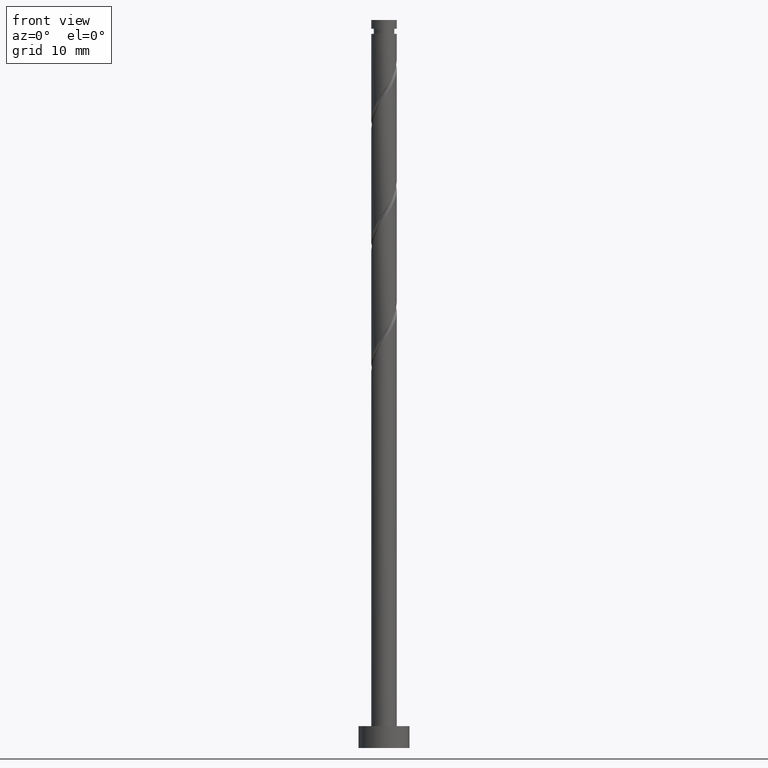
[diagram: clean part render]
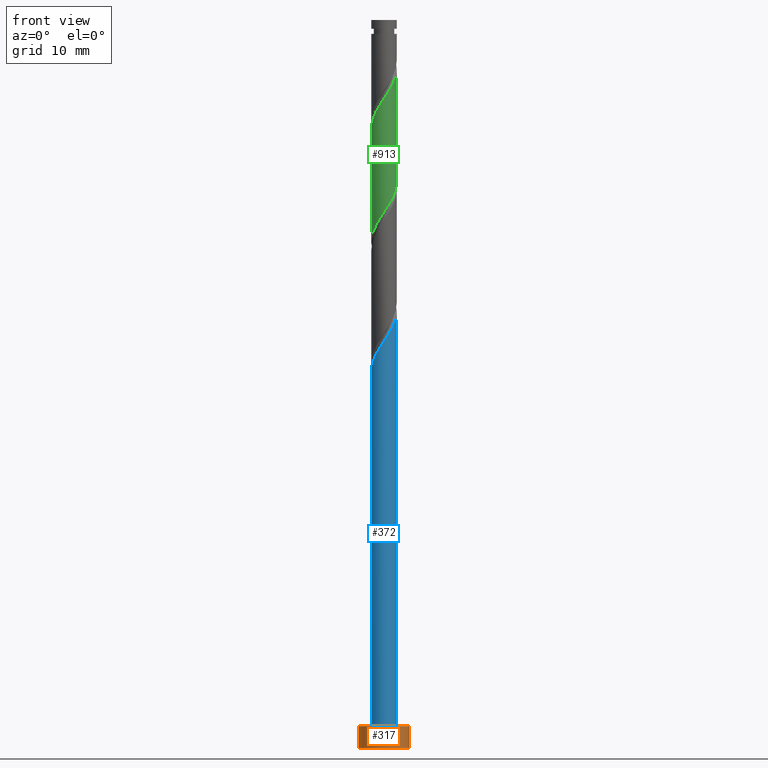
[diagram: same view with three faces highlighted in distinct colors, each labeled with its STEP entity id]
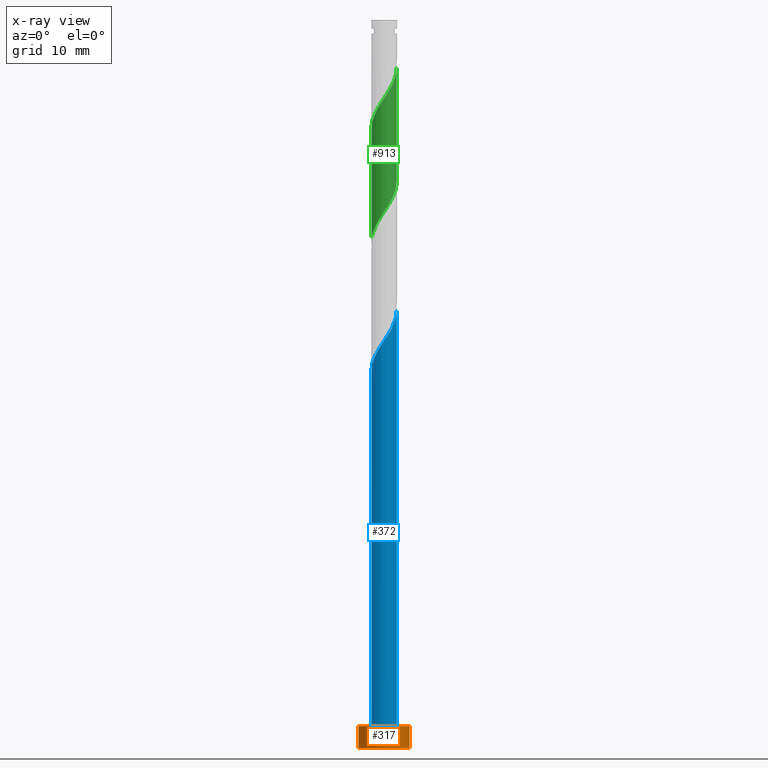
[diagram: x-ray of the same camera — body ghosted, the three highlighted faces saturated]
A machine part, front view with three faces highlighted in distinct colors.
The next image is the same camera in x-ray (body ghosted, the three faces saturated) — at least one of them is partly hidden behind the body in this view.
Their STEP definitions:

[orange] entity #317 — the highlighted cylindrical surface (edge-blend (fillet) strip) has radius 3.5 mm, axis along (-0, -0, -1).
#3 = CARTESIAN_POINT ( 'NONE',  ( 0.000000000000000000, 0.000000000000000000, 0.000000000000000000 ) ) ;
#13 = CARTESIAN_POINT ( 'NONE',  ( 0.000000000000000000, 0.000000000000000000, 3.000000000000000000 ) ) ;
#43 = VERTEX_POINT ( 'NONE', #645 ) ;
#125 = EDGE_CURVE ( 'NONE', #222, #43, #784, .T. ) ;
#158 = DIRECTION ( 'NONE',  ( -1.000000000000000000, 0.000000000000000000, 0.000000000000000000 ) ) ;
#174 = EDGE_CURVE ( 'NONE', #43, #879, #499, .T. ) ;
#214 = CARTESIAN_POINT ( 'NONE',  ( -3.500000000000000000, 0.000000000000000000, 3.000000000000000000 ) ) ;
#222 = VERTEX_POINT ( 'NONE', #326 ) ;
#245 = EDGE_CURVE ( 'NONE', #222, #629, #1126, .T. ) ;
#255 = DIRECTION ( 'NONE',  ( -0.000000000000000000, -0.000000000000000000, -1.000000000000000000 ) ) ;
#284 = AXIS2_PLACEMENT_3D ( 'NONE', #904, #1133, #667 ) ;
#317 = ADVANCED_FACE ( 'NONE', ( #382 ), #488, .T. ) ;
#326 = CARTESIAN_POINT ( 'NONE',  ( -3.500000000000000000, 0.000000000000000000, 3.000000000000000000 ) ) ;
#365 = DIRECTION ( 'NONE',  ( -0.000000000000000000, -0.000000000000000000, -1.000000000000000000 ) ) ;
#382 = FACE_OUTER_BOUND ( 'NONE', #1225, .T. ) ;
#476 = EDGE_CURVE ( 'NONE', #629, #879, #605, .T. ) ;
#488 = CYLINDRICAL_SURFACE ( 'NONE', #870, 3.500000000000000000 ) ;
#499 = CIRCLE ( 'NONE', #774, 3.500000000000000000 ) ;
#500 = ORIENTED_EDGE ( 'NONE', *, *, #174, .T. ) ;
#552 = ORIENTED_EDGE ( 'NONE', *, *, #476, .F. ) ;
#605 = LINE ( 'NONE', #1293, #893 ) ;
#629 = VERTEX_POINT ( 'NONE', #630 ) ;
#630 = CARTESIAN_POINT ( 'NONE',  ( 3.500000000000000000, 4.286263797015736595E-16, 3.000000000000000000 ) ) ;
#645 = CARTESIAN_POINT ( 'NONE',  ( -3.500000000000000000, 0.000000000000000000, 0.000000000000000000 ) ) ;
#667 = DIRECTION ( 'NONE',  ( 1.000000000000000000, 0.000000000000000000, 0.000000000000000000 ) ) ;
#774 = AXIS2_PLACEMENT_3D ( 'NONE', #3, #1024, #1475 ) ;
#784 = LINE ( 'NONE', #214, #1428 ) ;
#870 = AXIS2_PLACEMENT_3D ( 'NONE', #13, #365, #158 ) ;
#879 = VERTEX_POINT ( 'NONE', #895 ) ;
#893 = VECTOR ( 'NONE', #255, 1000.000000000000000 ) ;
#895 = CARTESIAN_POINT ( 'NONE',  ( 3.500000000000000000, 4.286263797015736595E-16, 0.000000000000000000 ) ) ;
#904 = CARTESIAN_POINT ( 'NONE',  ( 0.000000000000000000, 0.000000000000000000, 3.000000000000000000 ) ) ;
#1024 = DIRECTION ( 'NONE',  ( 0.000000000000000000, 0.000000000000000000, 1.000000000000000000 ) ) ;
#1126 = CIRCLE ( 'NONE', #284, 3.500000000000000000 ) ;
#1133 = DIRECTION ( 'NONE',  ( 0.000000000000000000, 0.000000000000000000, 1.000000000000000000 ) ) ;
#1139 = DIRECTION ( 'NONE',  ( -0.000000000000000000, -0.000000000000000000, -1.000000000000000000 ) ) ;
#1225 = EDGE_LOOP ( 'NONE', ( #552, #1431, #1310, #500 ) ) ;
#1293 = CARTESIAN_POINT ( 'NONE',  ( 3.500000000000000000, 4.286263797015736595E-16, 3.000000000000000000 ) ) ;
#1310 = ORIENTED_EDGE ( 'NONE', *, *, #125, .T. ) ;
#1428 = VECTOR ( 'NONE', #1139, 1000.000000000000000 ) ;
#1431 = ORIENTED_EDGE ( 'NONE', *, *, #245, .F. ) ;
#1475 = DIRECTION ( 'NONE',  ( 1.000000000000000000, 0.000000000000000000, 0.000000000000000000 ) ) ;

[blue] entity #372 — the highlighted cylindrical surface (edge-blend (fillet) strip) has radius 1.75 mm, axis along (-0, -0, -1).
#24 = CARTESIAN_POINT ( 'NONE',  ( -0.8356091416033645247, -1.537614178677113808, 54.58784157387103875 ) ) ;
#44 = CARTESIAN_POINT ( 'NONE',  ( 0.9138083691518432694, -1.492465833601578806, 57.36561935164882442 ) ) ;
#46 = CARTESIAN_POINT ( 'NONE',  ( 1.750000000000000000, 2.143131898507867804E-16, 3.000000000000000000 ) ) ;
#48 = FACE_OUTER_BOUND ( 'NONE', #343, .T. ) ;
#61 = CARTESIAN_POINT ( 'NONE',  ( -1.311110765996656102, -1.159089538943247399, 53.66191564794513624 ) ) ;
#178 = EDGE_CURVE ( 'NONE', #1166, #1127, #1300, .T. ) ;
#258 = CARTESIAN_POINT ( 'NONE',  ( -1.750000000000002442, 1.471488204869028877E-15, 51.74217187073413271 ) ) ;
#299 = ORIENTED_EDGE ( 'NONE', *, *, #1308, .F. ) ;
#343 = EDGE_LOOP ( 'NONE', ( #1358, #299, #444, #1207 ) ) ;
#363 = EDGE_CURVE ( 'NONE', #1375, #1166, #718, .T. ) ;
#372 = ADVANCED_FACE ( 'NONE', ( #48 ), #1397, .T. ) ;
#373 = DIRECTION ( 'NONE',  ( -0.000000000000000000, -0.000000000000000000, -1.000000000000000000 ) ) ;
#400 = CARTESIAN_POINT ( 'NONE',  ( 1.750000000000001110, -0.2853451506858047382, 59.64558569170184654 ) ) ;
#444 = ORIENTED_EDGE ( 'NONE', *, *, #363, .T. ) ;
#464 = DIRECTION ( 'NONE',  ( 1.000000000000000000, 0.000000000000000000, 0.000000000000000000 ) ) ;
#471 = CARTESIAN_POINT ( 'NONE',  ( 0.000000000000000000, 0.000000000000000000, 3.000000000000000000 ) ) ;
#481 = DIRECTION ( 'NONE',  ( -1.000000000000000000, 0.000000000000000000, 0.000000000000000000 ) ) ;
#482 = VERTEX_POINT ( 'NONE', #1156 ) ;
#491 = CARTESIAN_POINT ( 'NONE',  ( 1.369152359621468085, -1.089918261220983897, 58.29154527757475535 ) ) ;
#501 = CARTESIAN_POINT ( 'NONE',  ( -1.628473082076669742, -0.6407615944731068769, 52.73598972201919821 ) ) ;
#511 = CARTESIAN_POINT ( 'NONE',  ( -1.515489524769285890, -0.9279053362006949301, 53.19895268498216723 ) ) ;
#528 = AXIS2_PLACEMENT_3D ( 'NONE', #709, #373, #481 ) ;
#601 = CARTESIAN_POINT ( 'NONE',  ( 1.659356368983972541, -0.5559104610567554561, 59.21747120350067206 ) ) ;
#608 = CARTESIAN_POINT ( 'NONE',  ( -1.741456639384055149, -0.3536178527455196563, 52.27302675905625051 ) ) ;
#610 = EDGE_CURVE ( 'NONE', #482, #1127, #1448, .T. ) ;
#618 = CARTESIAN_POINT ( 'NONE',  ( -1.749417510755208127, -0.04514834507553509152, 51.81006379609327439 ) ) ;
#626 = CARTESIAN_POINT ( 'NONE',  ( 1.561334355841584642, -0.8484997595190606479, 58.75450824053774568 ) ) ;
#635 = CARTESIAN_POINT ( 'NONE',  ( -1.750000000000002442, 1.471488204869028877E-15, 51.74217187073413271 ) ) ;
#709 = CARTESIAN_POINT ( 'NONE',  ( 0.000000000000000000, 0.000000000000000000, 100.0000000000000000 ) ) ;
#718 = LINE ( 'NONE', #1063, #975 ) ;
#734 = CARTESIAN_POINT ( 'NONE',  ( 1.176970363401352637, -1.331336762922908701, 57.82858231461180765 ) ) ;
#791 = DIRECTION ( 'NONE',  ( 0.000000000000000000, 0.000000000000000000, 1.000000000000000000 ) ) ;
#832 = CARTESIAN_POINT ( 'NONE',  ( 1.750000000000002442, -1.478957688142475436E-15, 60.07550520406746841 ) ) ;
#892 =( BOUNDED_CURVE ( )  B_SPLINE_CURVE ( 2, ( #635, #963, #618, #608, #501, #511, #61, #1283, #24, #1077, #1069, #1059, #951, #1187, #44, #734, #491, #626, #601, #400, #832 ),
 .UNSPECIFIED., .F., .T. ) 
 B_SPLINE_CURVE_WITH_KNOTS ( ( 3, 2, 2, 2, 2, 2, 2, 2, 2, 2, 3 ),
 ( 0.05452480538552886835, 0.05555555555555558023, 0.06944444444444441977, 0.08333333333333337034, 0.09722222222222220989, 0.1111111111111111605, 0.1250000000000000000, 0.1388888888888888395, 0.1527777777777777901, 0.1666666666666666297, 0.1795248053855288961 ),
 .UNSPECIFIED. ) 
 CURVE ( )  GEOMETRIC_REPRESENTATION_ITEM ( )  RATIONAL_B_SPLINE_CURVE ( ( 0.9071930855141260297, 0.9080659294509738633, 0.9090909090909141677, 0.8952797754656484086, 0.9090909090909141677, 0.8952797754656484086, 0.9090909090909141677, 0.8952797754656484086, 0.9090909090909141677, 0.8952797754656484086, 0.9090909090909141677, 0.8952797754656484086, 0.9090909090909141677, 0.8952797754656484086, 0.9090909090909141677, 0.8952797754656484086, 0.9090909090909141677, 0.8952797754656484086, 0.9090909090909141677, 0.8963047551055886020, 0.9071930855141262517 ) ) 
 REPRESENTATION_ITEM ( '' )  );
#919 = AXIS2_PLACEMENT_3D ( 'NONE', #471, #791, #464 ) ;
#951 = CARTESIAN_POINT ( 'NONE',  ( 0.3482456029873167713, -1.715000000000002078, 56.43969342572289349 ) ) ;
#963 = CARTESIAN_POINT ( 'NONE',  ( -1.750000000000002665, -0.02257793008103167048, 51.77618924466649730 ) ) ;
#972 = CARTESIAN_POINT ( 'NONE',  ( -1.750000000000000000, 0.000000000000000000, 3.000000000000000000 ) ) ;
#975 = VECTOR ( 'NONE', #1301, 1000.000000000000000 ) ;
#980 = DIRECTION ( 'NONE',  ( -0.000000000000000000, -0.000000000000000000, -1.000000000000000000 ) ) ;
#1059 = CARTESIAN_POINT ( 'NONE',  ( 0.04584483107229859328, -1.776405095719755689, 55.97673046275996001 ) ) ;
#1063 = CARTESIAN_POINT ( 'NONE',  ( -1.750000000000000000, 0.000000000000000000, 100.0000000000000000 ) ) ;
#1069 = CARTESIAN_POINT ( 'NONE',  ( -0.2593207224552019352, -1.730679855694090330, 55.51376749979696967 ) ) ;
#1077 = CARTESIAN_POINT ( 'NONE',  ( -0.5644862759827029564, -1.684954615668428302, 55.05080453683402908 ) ) ;
#1107 = VECTOR ( 'NONE', #980, 1000.000000000000000 ) ;
#1127 = VERTEX_POINT ( 'NONE', #46 ) ;
#1156 = CARTESIAN_POINT ( 'NONE',  ( 1.750000000000002442, -1.478957688142475633E-15, 60.07550520406746841 ) ) ;
#1166 = VERTEX_POINT ( 'NONE', #972 ) ;
#1187 = CARTESIAN_POINT ( 'NONE',  ( 0.6506463749023345677, -1.653594904280250688, 56.90265638868588383 ) ) ;
#1207 = ORIENTED_EDGE ( 'NONE', *, *, #178, .T. ) ;
#1283 = CARTESIAN_POINT ( 'NONE',  ( -1.106732007224026537, -1.390273741685801090, 54.12487861090811236 ) ) ;
#1300 = CIRCLE ( 'NONE', #919, 1.750000000000000000 ) ;
#1301 = DIRECTION ( 'NONE',  ( -0.000000000000000000, -0.000000000000000000, -1.000000000000000000 ) ) ;
#1308 = EDGE_CURVE ( 'NONE', #1375, #482, #892, .T. ) ;
#1358 = ORIENTED_EDGE ( 'NONE', *, *, #610, .F. ) ;
#1375 = VERTEX_POINT ( 'NONE', #258 ) ;
#1397 = CYLINDRICAL_SURFACE ( 'NONE', #528, 1.750000000000000000 ) ;
#1448 = LINE ( 'NONE', #1454, #1107 ) ;
#1454 = CARTESIAN_POINT ( 'NONE',  ( 1.750000000000000000, 2.143131898507867804E-16, 100.0000000000000000 ) ) ;

[green] entity #913 — the highlighted cylindrical surface (edge-blend (fillet) strip) has radius 1.75 mm, axis along (-0, -0, -1).
#11 = CARTESIAN_POINT ( 'NONE',  ( -0.2593207224552019352, -1.730679855694090330, 88.84710083313032669 ) ) ;
#15 = CARTESIAN_POINT ( 'NONE',  ( -1.628473082076669742, -0.6407615944731068769, 86.06932305535248418 ) ) ;
#21 = CARTESIAN_POINT ( 'NONE',  ( -1.659356368983970764, -0.5559104610567531246, 70.32858231461179344 ) ) ;
#29 = CARTESIAN_POINT ( 'NONE',  ( -0.3482456029873170489, -1.715000000000000080, 73.10636009238956490 ) ) ;
#38 = CARTESIAN_POINT ( 'NONE',  ( 1.750000000000001998, 7.693567771650252350E-16, 93.40883853740081122 ) ) ;
#84 = EDGE_CURVE ( 'NONE', #1279, #385, #1114, .T. ) ;
#88 = AXIS2_PLACEMENT_3D ( 'NONE', #783, #339, #575 ) ;
#100 = CARTESIAN_POINT ( 'NONE',  ( -1.750000000000001998, -7.730915188017486130E-16, 85.07550520406746841 ) ) ;
#134 = CARTESIAN_POINT ( 'NONE',  ( -0.6506463749023349008, -1.653594904280247579, 72.64339712942663141 ) ) ;
#139 = CARTESIAN_POINT ( 'NONE',  ( 0.9138083691518432694, -1.492465833601578806, 90.69895268498214591 ) ) ;
#144 = CARTESIAN_POINT ( 'NONE',  ( 1.106732007224024539, -1.390273741685799092, 75.42117490720441708 ) ) ;
#156 = CARTESIAN_POINT ( 'NONE',  ( 1.750000000000000000, 2.143131898507867804E-16, 100.0000000000000000 ) ) ;
#167 = CARTESIAN_POINT ( 'NONE',  ( 1.311110765996653438, -1.159089538943247399, 75.88413787016735057 ) ) ;
#226 = CARTESIAN_POINT ( 'NONE',  ( 1.176970363401352637, -1.331336762922908701, 91.16191564794516466 ) ) ;
#228 = CARTESIAN_POINT ( 'NONE',  ( -1.749417510755208127, -0.04514834507553509152, 85.14339712942658878 ) ) ;
#239 = CARTESIAN_POINT ( 'NONE',  ( -1.741456639384055149, -0.3536178527455196563, 85.60636009238960753 ) ) ;
#246 = CARTESIAN_POINT ( 'NONE',  ( 0.04584483107229859328, -1.776405095719755689, 89.31006379609330281 ) ) ;
#248 = CARTESIAN_POINT ( 'NONE',  ( 1.561334355841584642, -0.8484997595190606479, 92.08784157387103164 ) ) ;
#263 = CARTESIAN_POINT ( 'NONE',  ( 1.750000000000000000, 3.660046803988976504E-16, 77.80388164737831858 ) ) ;
#286 = CARTESIAN_POINT ( 'NONE',  ( 1.749999999999999778, -0.02257793008103698915, 77.76986427344597530 ) ) ;
#339 = DIRECTION ( 'NONE',  ( -0.000000000000000000, -0.000000000000000000, -1.000000000000000000 ) ) ;
#358 = CARTESIAN_POINT ( 'NONE',  ( -1.106732007224026537, -1.390273741685801090, 87.45821194424146938 ) ) ;
#367 = CARTESIAN_POINT ( 'NONE',  ( -0.5644862759827029564, -1.684954615668428302, 88.38413787016739320 ) ) ;
#375 = CARTESIAN_POINT ( 'NONE',  ( -0.8356091416033645247, -1.537614178677113808, 87.92117490720438866 ) ) ;
#385 = VERTEX_POINT ( 'NONE', #38 ) ;
#392 = EDGE_CURVE ( 'NONE', #1083, #1413, #469, .T. ) ;
#394 = LINE ( 'NONE', #839, #894 ) ;
#440 = CARTESIAN_POINT ( 'NONE',  ( 1.369152359621468085, -1.089918261220983897, 91.62487861090808394 ) ) ;
#469 =( BOUNDED_CURVE ( )  B_SPLINE_CURVE ( 2, ( #598, #286, #506, #815, #1278, #1389, #167, #144, #1173, #1421, #1148, #590, #29, #134, #1056, #703, #1042, #1412, #21, #945, #966 ),
 .UNSPECIFIED., .F., .T. ) 
 B_SPLINE_CURVE_WITH_KNOTS ( ( 3, 2, 2, 2, 2, 2, 2, 2, 2, 2, 3 ),
 ( 0.5545248053855290626, 0.5555555555555555802, 0.5694444444444444198, 0.5833333333333333703, 0.5972222222222222099, 0.6111111111111111605, 0.6250000000000000000, 0.6388888888888888395, 0.6527777777777777901, 0.6666666666666666297, 0.6795248053855290626 ),
 .UNSPECIFIED. ) 
 CURVE ( )  GEOMETRIC_REPRESENTATION_ITEM ( )  RATIONAL_B_SPLINE_CURVE ( ( 0.9071930855141210337, 0.9080659294509687562, 0.9090909090909088386, 0.8952797754656434126, 0.9090909090909088386, 0.8952797754656434126, 0.9090909090909088386, 0.8952797754656434126, 0.9090909090909088386, 0.8952797754656434126, 0.9090909090909088386, 0.8952797754656434126, 0.9090909090909088386, 0.8952797754656434126, 0.9090909090909088386, 0.8952797754656434126, 0.9090909090909088386, 0.8952797754656434126, 0.9090909090909088386, 0.8963047551055834949, 0.9071930855141210337 ) ) 
 REPRESENTATION_ITEM ( '' )  );
#503 = VECTOR ( 'NONE', #621, 1000.000000000000000 ) ;
#506 = CARTESIAN_POINT ( 'NONE',  ( 1.749417510755205463, -0.04514834507553609072, 77.73598972201918400 ) ) ;
#524 = EDGE_LOOP ( 'NONE', ( #1262, #749, #738, #1304 ) ) ;
#554 = CARTESIAN_POINT ( 'NONE',  ( 1.659356368983972541, -0.5559104610567554561, 92.55080453683400776 ) ) ;
#568 = CARTESIAN_POINT ( 'NONE',  ( 1.750000000000003331, -0.2853451506857966335, 92.97891902503519646 ) ) ;
#575 = DIRECTION ( 'NONE',  ( -1.000000000000000000, 0.000000000000000000, 0.000000000000000000 ) ) ;
#590 = CARTESIAN_POINT ( 'NONE',  ( -0.04584483107229996024, -1.776405095719752802, 73.56932305535254102 ) ) ;
#598 = CARTESIAN_POINT ( 'NONE',  ( 1.749999999999999778, 3.660046803988976504E-16, 77.80388164737831858 ) ) ;
#621 = DIRECTION ( 'NONE',  ( -0.000000000000000000, -0.000000000000000000, -1.000000000000000000 ) ) ;
#683 = FACE_OUTER_BOUND ( 'NONE', #524, .T. ) ;
#703 = CARTESIAN_POINT ( 'NONE',  ( -1.176970363401350861, -1.331336762922906258, 71.71747120350069338 ) ) ;
#738 = ORIENTED_EDGE ( 'NONE', *, *, #1333, .T. ) ;
#746 = CARTESIAN_POINT ( 'NONE',  ( 0.3482456029873167713, -1.715000000000002078, 89.77302675905623630 ) ) ;
#749 = ORIENTED_EDGE ( 'NONE', *, *, #84, .F. ) ;
#783 = CARTESIAN_POINT ( 'NONE',  ( 0.000000000000000000, 0.000000000000000000, 100.0000000000000000 ) ) ;
#815 = CARTESIAN_POINT ( 'NONE',  ( 1.741456639384053151, -0.3536178527455197118, 77.27302675905623630 ) ) ;
#826 = LINE ( 'NONE', #156, #503 ) ;
#839 = CARTESIAN_POINT ( 'NONE',  ( -1.750000000000000000, 0.000000000000000000, 100.0000000000000000 ) ) ;
#894 = VECTOR ( 'NONE', #1084, 1000.000000000000000 ) ;
#913 = ADVANCED_FACE ( 'NONE', ( #683 ), #1031, .T. ) ;
#922 = CARTESIAN_POINT ( 'NONE',  ( 1.750000000000001998, 7.693567771650252350E-16, 93.40883853740081122 ) ) ;
#932 = CARTESIAN_POINT ( 'NONE',  ( -1.311110765996656102, -1.159089538943247399, 86.99524898127846484 ) ) ;
#945 = CARTESIAN_POINT ( 'NONE',  ( -1.749999999999999778, -0.2853451506857993536, 69.90046782641061895 ) ) ;
#966 = CARTESIAN_POINT ( 'NONE',  ( -1.749999999999999778, -1.045727658282564772E-15, 69.47054831404497577 ) ) ;
#1001 = CARTESIAN_POINT ( 'NONE',  ( -1.750000000000000000, -1.045727658282564772E-15, 69.47054831404497577 ) ) ;
#1031 = CYLINDRICAL_SURFACE ( 'NONE', #88, 1.750000000000000000 ) ;
#1042 = CARTESIAN_POINT ( 'NONE',  ( -1.369152359621466974, -1.089918261220982121, 71.25450824053771726 ) ) ;
#1053 = CARTESIAN_POINT ( 'NONE',  ( -1.750000000000001998, -7.730915188017486130E-16, 85.07550520406746841 ) ) ;
#1056 = CARTESIAN_POINT ( 'NONE',  ( -0.9138083691518429363, -1.492465833601576808, 72.18043416646364108 ) ) ;
#1072 = EDGE_CURVE ( 'NONE', #385, #1083, #826, .T. ) ;
#1083 = VERTEX_POINT ( 'NONE', #263 ) ;
#1084 = DIRECTION ( 'NONE',  ( -0.000000000000000000, -0.000000000000000000, -1.000000000000000000 ) ) ;
#1114 =( BOUNDED_CURVE ( )  B_SPLINE_CURVE ( 2, ( #100, #1348, #228, #239, #15, #1399, #932, #358, #375, #367, #11, #246, #746, #1204, #139, #226, #440, #248, #554, #568, #922 ),
 .UNSPECIFIED., .F., .T. ) 
 B_SPLINE_CURVE_WITH_KNOTS ( ( 3, 2, 2, 2, 2, 2, 2, 2, 2, 2, 3 ),
 ( 0.5545248053855293957, 0.5555555555555555802, 0.5694444444444444198, 0.5833333333333332593, 0.5972222222222222099, 0.6111111111111111605, 0.6250000000000000000, 0.6388888888888888395, 0.6527777777777777901, 0.6666666666666667407, 0.6795248053855292847 ),
 .UNSPECIFIED. ) 
 CURVE ( )  GEOMETRIC_REPRESENTATION_ITEM ( )  RATIONAL_B_SPLINE_CURVE ( ( 0.9071930855141270289, 0.9080659294509744184, 0.9090909090909141677, 0.8952797754656484086, 0.9090909090909141677, 0.8952797754656484086, 0.9090909090909141677, 0.8952797754656484086, 0.9090909090909141677, 0.8952797754656484086, 0.9090909090909141677, 0.8952797754656484086, 0.9090909090909141677, 0.8952797754656484086, 0.9090909090909141677, 0.8952797754656484086, 0.9090909090909141677, 0.8952797754656484086, 0.9090909090909141677, 0.8963047551055883799, 0.9071930855141268069 ) ) 
 REPRESENTATION_ITEM ( '' )  );
#1148 = CARTESIAN_POINT ( 'NONE',  ( 0.2593207224552011581, -1.730679855694088776, 74.03228601831548872 ) ) ;
#1173 = CARTESIAN_POINT ( 'NONE',  ( 0.8356091416033630814, -1.537614178677112253, 74.95821194424139833 ) ) ;
#1204 = CARTESIAN_POINT ( 'NONE',  ( 0.6506463749023345677, -1.653594904280250688, 90.23598972201922663 ) ) ;
#1262 = ORIENTED_EDGE ( 'NONE', *, *, #1072, .F. ) ;
#1278 = CARTESIAN_POINT ( 'NONE',  ( 1.628473082076667966, -0.6407615944731063218, 76.81006379609327439 ) ) ;
#1279 = VERTEX_POINT ( 'NONE', #1053 ) ;
#1304 = ORIENTED_EDGE ( 'NONE', *, *, #392, .F. ) ;
#1333 = EDGE_CURVE ( 'NONE', #1279, #1413, #394, .T. ) ;
#1348 = CARTESIAN_POINT ( 'NONE',  ( -1.750000000000001998, -0.02257793008104306068, 85.10952257799982590 ) ) ;
#1389 = CARTESIAN_POINT ( 'NONE',  ( 1.515489524769282781, -0.9279053362006947081, 76.34710083313032669 ) ) ;
#1399 = CARTESIAN_POINT ( 'NONE',  ( -1.515489524769285890, -0.9279053362006949301, 86.53228601831553135 ) ) ;
#1412 = CARTESIAN_POINT ( 'NONE',  ( -1.561334355841582866, -0.8484997595190589825, 70.79154527757475535 ) ) ;
#1413 = VERTEX_POINT ( 'NONE', #1001 ) ;
#1421 = CARTESIAN_POINT ( 'NONE',  ( 0.5644862759827012910, -1.684954615668426081, 74.49524898127847905 ) ) ;